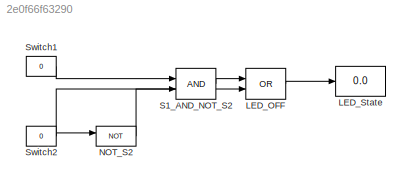
MODEL slx_2e0f66f63290
KIND model
CONFIG AbsTol = auto
CONFIG EnableMultiTasking = off
CONFIG FixedStep = 1
CONFIG MaxStep = auto
CONFIG MinStep = auto
CONFIG RelTol = 1e-3
CONFIG SampleTimeConstraint = Unconstrained
CONFIG SolverName = FixedStepDiscrete
CONFIG StartTime = 0.0
CONFIG StopTime = 10
BLOCK [Logic] LED_OFF
  AllPortsSameDT = off
  Operator = OR
  OutDataTypeStr = boolean
BLOCK [Display] LED_State
  Decimation = 1
BLOCK [Logic] NOT_S2
  AllPortsSameDT = off
  Operator = NOT
  OutDataTypeStr = boolean
BLOCK [Logic] S1_AND_NOT_S2
  AllPortsSameDT = off
  OutDataTypeStr = boolean
BLOCK [Constant] Switch1
  Value = 0
BLOCK [Constant] Switch2
  Value = 0
LINE LED_OFF:1 -> LED_State:1
LINE NOT_S2:1 -> S1_AND_NOT_S2:2
LINE S1_AND_NOT_S2:1 -> LED_OFF:1
LINE Switch1:1 -> S1_AND_NOT_S2:1
NET Switch2:1 -> LED_OFF:2, NOT_S2:1
note: NET lines group one-source signal fan-out (src -> all destinations, sorted); 1:1 wires keep LINE
